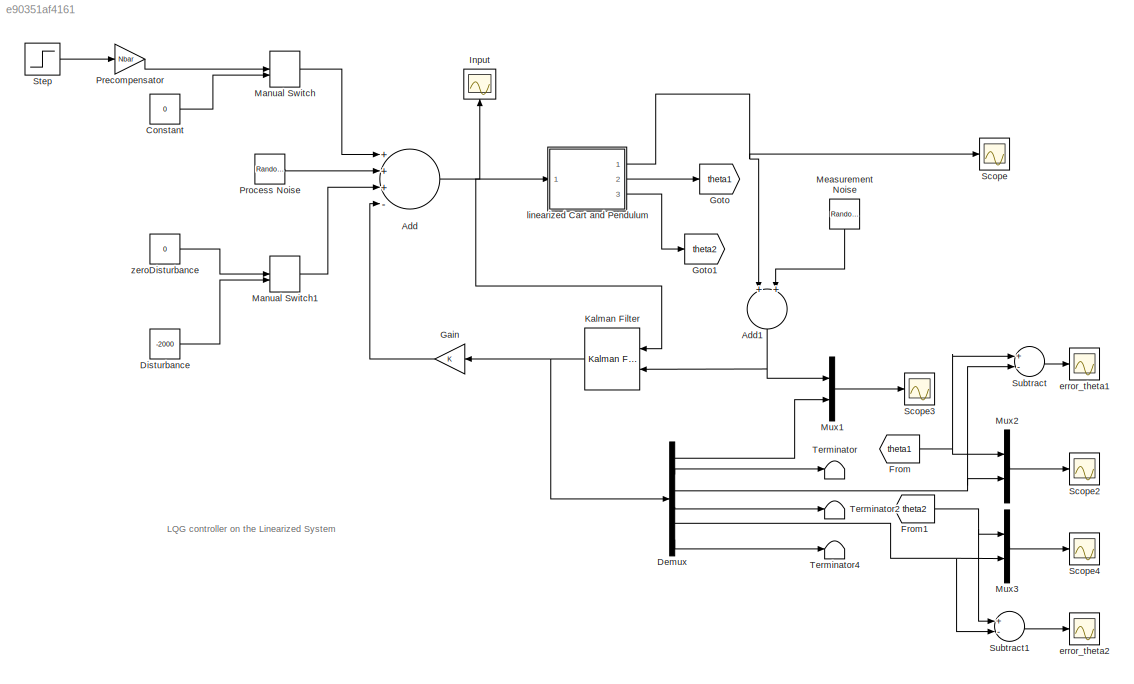
MODEL slx_e90351af4161
KIND model
CONFIG AbsTol = auto
CONFIG FixedStep = auto
CONFIG MaxStep = auto
CONFIG MinStep = auto
CONFIG RelTol = 1e-3
CONFIG SampleTimeConstraint = Unconstrained
CONFIG Solver = VariableStepAuto
CONFIG SolverMode = Auto
CONFIG SolverName = VariableStepAuto
CONFIG StartTime = 0.0
CONFIG StopTime = 50
BLOCK [Sum] Add
  InputSameDT = off
  Inputs = +++-
  OutDataTypeStr = Inherit: Inherit via internal rule
  Ports = [4, 1]
  SaturateOnIntegerOverflow = off
BLOCK [Sum] Add1
  InputSameDT = off
  OutDataTypeStr = Inherit: Inherit via internal rule
  Ports = [2, 1]
  SaturateOnIntegerOverflow = off
BLOCK [Constant] Constant
  Value = 0
BLOCK [Demux] Demux
  DisplayOption = bar
  Outputs = 6
  Ports = [1, 6]
BLOCK [Constant] Disturbance
  Value = -2000
BLOCK [From] From
  GotoTag = theta1
BLOCK [From] From1
  GotoTag = theta2
BLOCK [Gain] Gain
  Gain = K
  Multiplication = Matrix(K*u)
  OutDataTypeStr = Inherit: Inherit via internal rule
  ParamDataTypeStr = Inherit: Inherit via internal rule
  SaturateOnIntegerOverflow = off
BLOCK [Goto] Goto
  GotoTag = theta1
BLOCK [Goto] Goto1
  GotoTag = theta2
BLOCK [Scope] Input
  Ports = [1]
  ScopeSpecificationString = Simulink.scopes.TimeScopeBlockCfg('CurrentConfiguration', extmgr.ConfigurationSet(extmgr.Configuration('Core','General UI',true),extmgr.Configuration('Core','Source UI',true),extmgr.Configuration('Sources','WiredSimulink',true,'DataLoggingVariableName','ScopeData4'),extmgr.Configuration('Visuals','Time Domain',true,'SerializedDisplays',{struct('MinYLimReal','-35627.10591','MaxYLimReal','109564.466...<+1424ch>
BLOCK [Reference] Kalman Filter  REF=ctrlSharedLib/Kalman Filter
  Ports = [2, 1]
  SourceBlock = ctrlSharedLib/Kalman Filter
  SourceType = ctrlKalmanFilter
BLOCK [ManualSwitch] Manual Switch
  CurrentSetting = 0
BLOCK [ManualSwitch] Manual Switch1
BLOCK [RandomNumber] Measurement Noise
  SampleTime = 0.1
  Variance = 0.001
BLOCK [Mux] Mux1
  DisplayOption = bar
  Inputs = 2
  Ports = [2, 1]
BLOCK [Mux] Mux2
  DisplayOption = bar
  Inputs = 2
  Ports = [2, 1]
BLOCK [Mux] Mux3
  DisplayOption = bar
  Inputs = 2
  Ports = [2, 1]
BLOCK [Gain] Precompensator
  Gain = Nbar
  OutDataTypeStr = Inherit: Inherit via internal rule
  ParamDataTypeStr = Inherit: Inherit via internal rule
  SaturateOnIntegerOverflow = off
BLOCK [RandomNumber] Process Noise
  SampleTime = 0.1
  Variance = 0.2
BLOCK [Scope] Scope
  Ports = [1]
  ScopeSpecificationString = Simulink.scopes.TimeScopeBlockCfg('CurrentConfiguration', extmgr.ConfigurationSet(extmgr.Configuration('Core','General UI',true,'FigureColor',[1 1 1]),extmgr.Configuration('Core','Source UI',true),extmgr.Configuration('Sources','WiredSimulink',true),extmgr.Configuration('Visuals','Time Domain',true,'SerializedDisplays',{struct('MinYLimReal','-2.23117','MaxYLimReal','1.03255','YLabelReal','Cart Pos...<+1555ch>
BLOCK [Scope] Scope2
  Ports = [1]
  ScopeSpecificationString = Simulink.scopes.TimeScopeBlockCfg('CurrentConfiguration', extmgr.ConfigurationSet(extmgr.Configuration('Core','General UI',true,'FigureColor',[1 1 1]),extmgr.Configuration('Core','Source UI',true),extmgr.Configuration('Sources','WiredSimulink',true,'DataLoggingVariableName','ScopeData2'),extmgr.Configuration('Visuals','Time Domain',true,'SerializedDisplays',{struct('MinYLimReal','-0.1001','MaxYLim...<+1678ch>
BLOCK [Scope] Scope3
  Ports = [1]
  ScopeSpecificationString = Simulink.scopes.TimeScopeBlockCfg('CurrentConfiguration', extmgr.ConfigurationSet(extmgr.Configuration('Core','General UI',true),extmgr.Configuration('Core','Source UI',true),extmgr.Configuration('Sources','WiredSimulink',true,'DataLoggingVariableName','ScopeData1'),extmgr.Configuration('Visuals','Time Domain',true,'SerializedDisplays',{struct('MinYLimReal','-4158.89855','MaxYLimReal','2822.64902'...<+1442ch>
BLOCK [Scope] Scope4
  Ports = [1]
  ScopeSpecificationString = Simulink.scopes.TimeScopeBlockCfg('CurrentConfiguration', extmgr.ConfigurationSet(extmgr.Configuration('Core','General UI',true,'FigureColor',[1 1 1]),extmgr.Configuration('Core','Source UI',true),extmgr.Configuration('Sources','WiredSimulink',true,'DataLoggingVariableName','ScopeData3'),extmgr.Configuration('Visuals','Time Domain',true,'SerializedDisplays',{struct('MinYLimReal','-0.08304','MaxYLi...<+1733ch>
BLOCK [Step] Step
  After = 10
  SampleTime = 0
BLOCK [Sum] Subtract
  InputSameDT = off
  Inputs = +-
  OutDataTypeStr = Inherit: Inherit via internal rule
  Ports = [2, 1]
  SaturateOnIntegerOverflow = off
BLOCK [Sum] Subtract1
  InputSameDT = off
  Inputs = +-
  OutDataTypeStr = Inherit: Inherit via internal rule
  Ports = [2, 1]
  SaturateOnIntegerOverflow = off
BLOCK [Terminator] Terminator
BLOCK [Terminator] Terminator2
BLOCK [Terminator] Terminator4
BLOCK [Scope] error_theta1
  Ports = [1]
  ScopeSpecificationString = Simulink.scopes.TimeScopeBlockCfg('CurrentConfiguration', extmgr.ConfigurationSet(extmgr.Configuration('Core','General UI',true),extmgr.Configuration('Core','Source UI',true),extmgr.Configuration('Sources','WiredSimulink',true,'DataLoggingVariableName','ScopeData5'),extmgr.Configuration('Visuals','Time Domain',true,'SerializedDisplays',{struct('MinYLimReal','-0.00028','MaxYLimReal','0.00029','YLab...<+1393ch>
BLOCK [Scope] error_theta2
  Ports = [1]
  ScopeSpecificationString = Simulink.scopes.TimeScopeBlockCfg('CurrentConfiguration', extmgr.ConfigurationSet(extmgr.Configuration('Core','General UI',true),extmgr.Configuration('Core','Source UI',true),extmgr.Configuration('Sources','WiredSimulink',true,'DataLoggingVariableName','ScopeData6'),extmgr.Configuration('Visuals','Time Domain',true,'SerializedDisplays',{struct('MinYLimReal','-0.00042','MaxYLimReal','0.00043','YLab...<+1368ch>
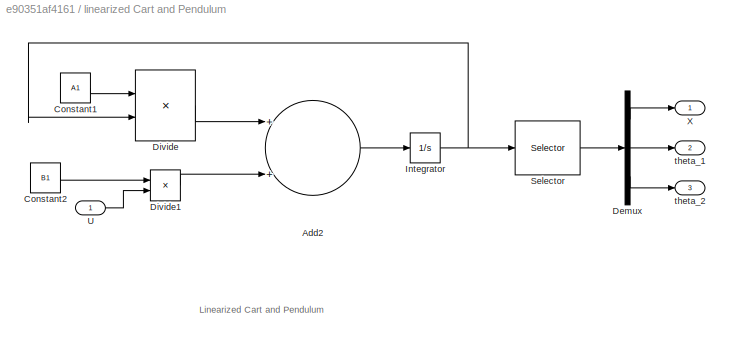
BLOCK [SubSystem] linearized Cart and Pendulum 
  Ports = [1, 3]
  RequestExecContextInheritance = off
  Variant = off
BLOCK [Sum] linearized Cart and Pendulum /Add2
  InputSameDT = off
  OutDataTypeStr = Inherit: Inherit via internal rule
  Ports = [2, 1]
  SaturateOnIntegerOverflow = off
BLOCK [Constant] linearized Cart and Pendulum /Constant1
  Value = A1
BLOCK [Constant] linearized Cart and Pendulum /Constant2
  Value = B1
BLOCK [Demux] linearized Cart and Pendulum /Demux
  DisplayOption = bar
  Outputs = 3
  Ports = [1, 3]
BLOCK [Product] linearized Cart and Pendulum /Divide
  InputSameDT = off
  Inputs = **
  Multiplication = Matrix(*)
  OutDataTypeStr = Inherit: Inherit via internal rule
  Ports = [2, 1]
  RndMeth = Floor
  SaturateOnIntegerOverflow = off
BLOCK [Product] linearized Cart and Pendulum /Divide1
  InputSameDT = off
  Inputs = **
  Multiplication = Matrix(*)
  OutDataTypeStr = Inherit: Inherit via internal rule
  Ports = [2, 1]
  RndMeth = Floor
  SaturateOnIntegerOverflow = off
BLOCK [Integrator] linearized Cart and Pendulum /Integrator
  InitialCondition = X0
  Ports = [1, 1]
BLOCK [Selector] linearized Cart and Pendulum /Selector
  IndexOptions = Index vector (dialog)
  Indices = [1 3 5]
  InputPortWidth = 6
  OutputSizes = 1
  Ports = [1, 1]
BLOCK [Inport] linearized Cart and Pendulum /U
  IconDisplay = Port number
BLOCK [Outport] linearized Cart and Pendulum /X
  IconDisplay = Port number
BLOCK [Outport] linearized Cart and Pendulum /theta_1
  IconDisplay = Port number
  Port = 2
BLOCK [Outport] linearized Cart and Pendulum /theta_2
  IconDisplay = Port number
  Port = 3
BLOCK [Constant] zeroDisturbance
  Value = 0
ANNOTATION (root): LQG controller on the Linearized System
ANNOTATION linearized Cart and Pendulum : Linearized Cart and Pendulum
NET Add1:1 -> Kalman Filter:2, Mux1:1
NET Add:1 -> Input:1, Kalman Filter:1, linearized Cart and Pendulum :1
LINE Constant:1 -> Manual Switch:2
LINE Demux:1 -> Mux1:2
LINE Demux:2 -> Terminator:1
NET Demux:3 -> Mux2:2, Subtract:2
LINE Demux:4 -> Terminator2:1
NET Demux:5 -> Mux3:2, Subtract1:2
LINE Demux:6 -> Terminator4:1
LINE Disturbance:1 -> Manual Switch1:2
NET From1:1 -> Mux3:1, Subtract1:1
NET From:1 -> Mux2:1, Subtract:1
LINE Gain:1 -> Add:4
NET Kalman Filter:1 -> Demux:1, Gain:1
LINE Manual Switch1:1 -> Add:3
LINE Manual Switch:1 -> Add:1
LINE Measurement Noise:1 -> Add1:2
LINE Mux1:1 -> Scope3:1
LINE Mux2:1 -> Scope2:1
LINE Mux3:1 -> Scope4:1
LINE Precompensator:1 -> Manual Switch:1
LINE Process Noise:1 -> Add:2
LINE Step:1 -> Precompensator:1
LINE Subtract1:1 -> error_theta2:1
LINE Subtract:1 -> error_theta1:1
LINE linearized Cart and Pendulum /Add2:1 -> linearized Cart and Pendulum /Integrator:1
LINE linearized Cart and Pendulum /Constant1:1 -> linearized Cart and Pendulum /Divide:1
LINE linearized Cart and Pendulum /Constant2:1 -> linearized Cart and Pendulum /Divide1:1
LINE linearized Cart and Pendulum /Demux:1 -> linearized Cart and Pendulum /X:1
LINE linearized Cart and Pendulum /Demux:2 -> linearized Cart and Pendulum /theta_1:1
LINE linearized Cart and Pendulum /Demux:3 -> linearized Cart and Pendulum /theta_2:1
LINE linearized Cart and Pendulum /Divide1:1 -> linearized Cart and Pendulum /Add2:2
LINE linearized Cart and Pendulum /Divide:1 -> linearized Cart and Pendulum /Add2:1
NET linearized Cart and Pendulum /Integrator:1 -> linearized Cart and Pendulum /Divide:2, linearized Cart and Pendulum /Selector:1
LINE linearized Cart and Pendulum /Selector:1 -> linearized Cart and Pendulum /Demux:1
LINE linearized Cart and Pendulum /U:1 -> linearized Cart and Pendulum /Divide1:2
NET linearized Cart and Pendulum :1 -> Add1:1, Scope:1
LINE linearized Cart and Pendulum :2 -> Goto:1
LINE linearized Cart and Pendulum :3 -> Goto1:1
LINE zeroDisturbance:1 -> Manual Switch1:1
note: NET lines group one-source signal fan-out (src -> all destinations, sorted); 1:1 wires keep LINE
